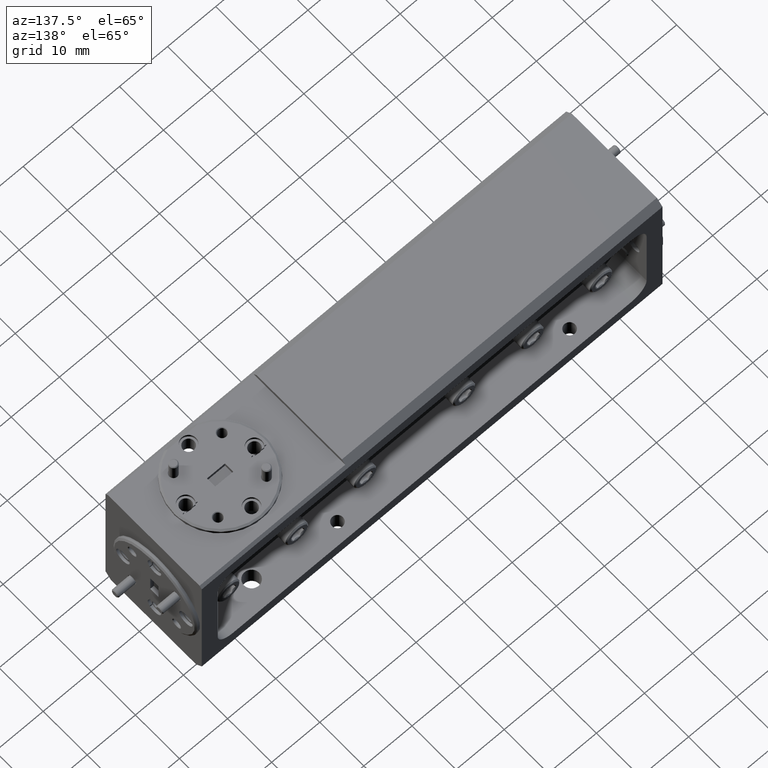
[diagram: clean part render]
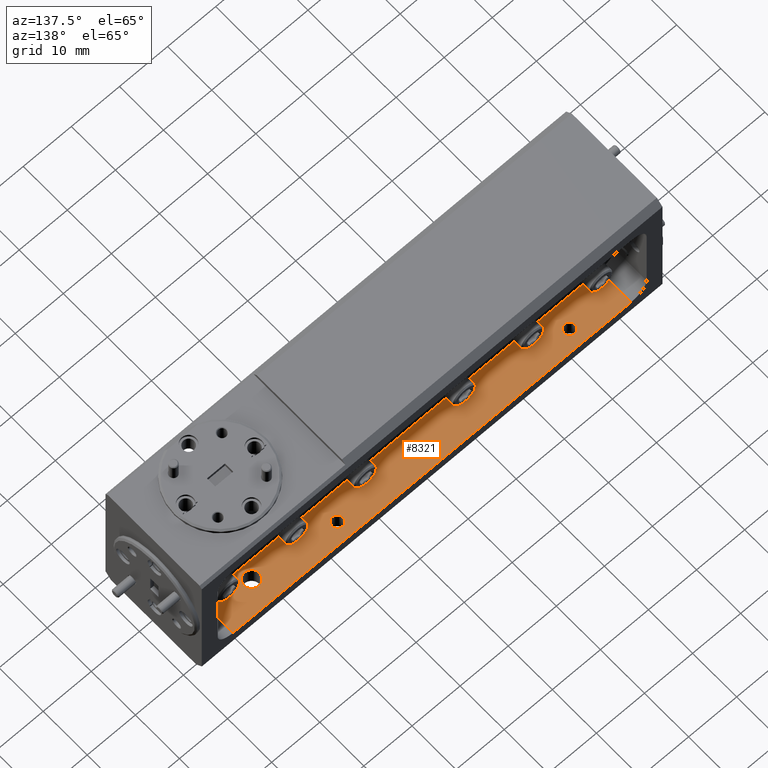
[diagram: same view with one face highlighted and labeled with its STEP entity id]
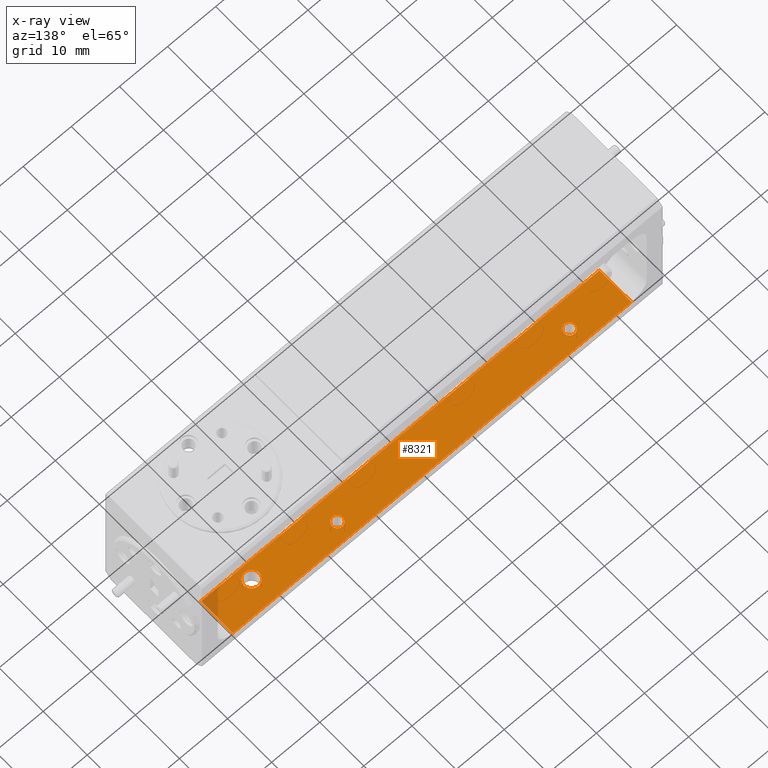
[diagram: x-ray of the same camera — body ghosted, the highlighted face saturated]
A machine part, auxiliary view. The second image highlights one B-rep face of the part: STEP entity #8321.
The next image is the same camera in x-ray: the body ghosted, the highlighted face saturated — about 1% of this face is hidden behind the body in this view.
In plain terms, the highlighted planar face has unit normal (0, -0, 1).
Its self-contained STEP definition (entity closure, byte-faithful):
#390 = DIRECTION ( 'NONE',  ( -0.0000000000000000000, -0.0000000000000000000, -1.000000000000000000 ) ) ;
#590 = CIRCLE ( 'NONE', #5089, 0.06249999999999995143 ) ;
#641 = VERTEX_POINT ( 'NONE', #7810 ) ;
#731 = CARTESIAN_POINT ( 'NONE',  ( 1.755000000000000782, 0.5750000000000000666, -0.4400000000000001688 ) ) ;
#736 = DIRECTION ( 'NONE',  ( -1.000000000000000000, 0.0000000000000000000, 0.0000000000000000000 ) ) ;
#1145 = CIRCLE ( 'NONE', #15975, 0.04449999999999989381 ) ;
#1377 = CARTESIAN_POINT ( 'NONE',  ( -1.190499999999999892, 0.7400000000000002132, -0.4399999999999994471 ) ) ;
#1474 = AXIS2_PLACEMENT_3D ( 'NONE', #11709, #17856, #13640 ) ;
#1615 = CARTESIAN_POINT ( 'NONE',  ( -1.279499999999999860, 0.7400000000000002132, -0.4399999999999994471 ) ) ;
#1912 = VERTEX_POINT ( 'NONE', #11928 ) ;
#1987 = EDGE_CURVE ( 'NONE', #7344, #19432, #6622, .T. ) ;
#2070 = EDGE_CURVE ( 'NONE', #641, #6845, #2084, .T. ) ;
#2084 = LINE ( 'NONE', #14413, #7120 ) ;
#2244 = LINE ( 'NONE', #8405, #13789 ) ;
#2277 = EDGE_CURVE ( 'NONE', #17383, #2281, #2611, .T. ) ;
#2281 = VERTEX_POINT ( 'NONE', #1377 ) ;
#2486 = LINE ( 'NONE', #16319, #6932 ) ;
#2597 = VECTOR ( 'NONE', #19256, 39.37007874015748143 ) ;
#2611 = CIRCLE ( 'NONE', #18087, 0.04450000000000003259 ) ;
#3307 = CARTESIAN_POINT ( 'NONE',  ( 1.367499999999999716, 0.6717499999999997362, -0.4399999999999997247 ) ) ;
#3413 = CIRCLE ( 'NONE', #8579, 0.04449999999999989381 ) ;
#3555 = CIRCLE ( 'NONE', #12754, 0.06249999999999995143 ) ;
#3581 = DIRECTION ( 'NONE',  ( -0.0000000000000000000, -0.0000000000000000000, -1.000000000000000000 ) ) ;
#4180 = ORIENTED_EDGE ( 'NONE', *, *, #11989, .T. ) ;
#4602 = CARTESIAN_POINT ( 'NONE',  ( 1.242499999999999938, 0.6717499999999997362, -0.4399999999999997247 ) ) ;
#4697 = DIRECTION ( 'NONE',  ( -0.0000000000000000000, -0.0000000000000000000, -1.000000000000000000 ) ) ;
#4960 = ORIENTED_EDGE ( 'NONE', *, *, #2277, .T. ) ;
#5089 = AXIS2_PLACEMENT_3D ( 'NONE', #15810, #3581, #15904 ) ;
#5844 = DIRECTION ( 'NONE',  ( -1.000000000000000000, 0.0000000000000000000, 0.0000000000000000000 ) ) ;
#6622 = LINE ( 'NONE', #13098, #2597 ) ;
#6845 = VERTEX_POINT ( 'NONE', #14895 ) ;
#6932 = VECTOR ( 'NONE', #12182, 39.37007874015748143 ) ;
#7120 = VECTOR ( 'NONE', #7886, 39.37007874015748143 ) ;
#7344 = VERTEX_POINT ( 'NONE', #18466 ) ;
#7810 = CARTESIAN_POINT ( 'NONE',  ( -1.630000000000000338, 0.8600000000000000977, -0.4400000000000001688 ) ) ;
#7886 = DIRECTION ( 'NONE',  ( -0.0000000000000000000, -1.000000000000000000, -0.0000000000000000000 ) ) ;
#8061 = ORIENTED_EDGE ( 'NONE', *, *, #10378, .T. ) ;
#8162 = CARTESIAN_POINT ( 'NONE',  ( 0.6650000000000000355, 0.7400000000000002132, -0.4399999999999996692 ) ) ;
#8175 = EDGE_LOOP ( 'NONE', ( #9934, #10266, #16362, #10199 ) ) ;
#8321 = ADVANCED_FACE ( 'NONE', ( #17296, #19014, #17586, #14279 ), #11343, .T. ) ;
#8405 = CARTESIAN_POINT ( 'NONE',  ( 1.755000000000000782, 0.8600000000000000977, -0.4400000000000001688 ) ) ;
#8579 = AXIS2_PLACEMENT_3D ( 'NONE', #8162, #390, #13104 ) ;
#8894 = CIRCLE ( 'NONE', #1474, 0.04450000000000003259 ) ;
#9727 = DIRECTION ( 'NONE',  ( 0.0000000000000000000, -0.0000000000000000000, 1.000000000000000000 ) ) ;
#9885 = CARTESIAN_POINT ( 'NONE',  ( 0.7094999999999999085, 0.7400000000000002132, -0.4399999999999996692 ) ) ;
#9934 = ORIENTED_EDGE ( 'NONE', *, *, #13484, .T. ) ;
#10124 = EDGE_CURVE ( 'NONE', #2281, #17383, #8894, .T. ) ;
#10199 = ORIENTED_EDGE ( 'NONE', *, *, #2070, .T. ) ;
#10266 = ORIENTED_EDGE ( 'NONE', *, *, #1987, .T. ) ;
#10304 = EDGE_LOOP ( 'NONE', ( #4960, #14911 ) ) ;
#10378 = EDGE_CURVE ( 'NONE', #1912, #17430, #3413, .T. ) ;
#10875 = EDGE_CURVE ( 'NONE', #641, #19432, #2244, .T. ) ;
#11343 = PLANE ( 'NONE',  #15824 ) ;
#11709 = CARTESIAN_POINT ( 'NONE',  ( -1.234999999999999876, 0.7400000000000002132, -0.4399999999999994471 ) ) ;
#11928 = CARTESIAN_POINT ( 'NONE',  ( 0.6205000000000001625, 0.7400000000000002132, -0.4399999999999996692 ) ) ;
#11989 = EDGE_CURVE ( 'NONE', #13217, #13647, #590, .T. ) ;
#12110 = EDGE_LOOP ( 'NONE', ( #8061, #19377 ) ) ;
#12182 = DIRECTION ( 'NONE',  ( 1.000000000000000000, -0.0000000000000000000, -0.0000000000000000000 ) ) ;
#12754 = AXIS2_PLACEMENT_3D ( 'NONE', #13533, #19686, #5844 ) ;
#13098 = CARTESIAN_POINT ( 'NONE',  ( 1.630000000000001004, 0.8600000000000000977, -0.4400000000000001688 ) ) ;
#13104 = DIRECTION ( 'NONE',  ( -1.000000000000000000, 0.0000000000000000000, 0.0000000000000000000 ) ) ;
#13179 = EDGE_CURVE ( 'NONE', #13647, #13217, #3555, .T. ) ;
#13217 = VERTEX_POINT ( 'NONE', #3307 ) ;
#13484 = EDGE_CURVE ( 'NONE', #6845, #7344, #2486, .T. ) ;
#13533 = CARTESIAN_POINT ( 'NONE',  ( 1.304999999999999938, 0.6717499999999997362, -0.4399999999999997247 ) ) ;
#13640 = DIRECTION ( 'NONE',  ( -1.000000000000000000, 0.0000000000000000000, 0.0000000000000000000 ) ) ;
#13647 = VERTEX_POINT ( 'NONE', #4602 ) ;
#13789 = VECTOR ( 'NONE', #19211, 39.37007874015748143 ) ;
#13804 = CARTESIAN_POINT ( 'NONE',  ( -1.234999999999999876, 0.7400000000000002132, -0.4399999999999994471 ) ) ;
#14279 = FACE_OUTER_BOUND ( 'NONE', #8175, .T. ) ;
#14413 = CARTESIAN_POINT ( 'NONE',  ( -1.630000000000000560, 0.5750000000000000666, -0.4400000000000001688 ) ) ;
#14895 = CARTESIAN_POINT ( 'NONE',  ( -1.630000000000000338, 0.5750000000000000666, -0.4400000000000001688 ) ) ;
#14911 = ORIENTED_EDGE ( 'NONE', *, *, #10124, .T. ) ;
#15105 = EDGE_LOOP ( 'NONE', ( #16949, #4180 ) ) ;
#15607 = DIRECTION ( 'NONE',  ( -1.000000000000000000, 0.0000000000000000000, 0.0000000000000000000 ) ) ;
#15810 = CARTESIAN_POINT ( 'NONE',  ( 1.304999999999999938, 0.6717499999999997362, -0.4399999999999997247 ) ) ;
#15824 = AXIS2_PLACEMENT_3D ( 'NONE', #731, #9727, #17498 ) ;
#15904 = DIRECTION ( 'NONE',  ( -1.000000000000000000, 0.0000000000000000000, 0.0000000000000000000 ) ) ;
#15975 = AXIS2_PLACEMENT_3D ( 'NONE', #17694, #19124, #736 ) ;
#16319 = CARTESIAN_POINT ( 'NONE',  ( 1.755000000000000782, 0.5750000000000000666, -0.4400000000000001688 ) ) ;
#16362 = ORIENTED_EDGE ( 'NONE', *, *, #10875, .F. ) ;
#16514 = EDGE_CURVE ( 'NONE', #17430, #1912, #1145, .T. ) ;
#16949 = ORIENTED_EDGE ( 'NONE', *, *, #13179, .T. ) ;
#17296 = FACE_BOUND ( 'NONE', #12110, .T. ) ;
#17383 = VERTEX_POINT ( 'NONE', #1615 ) ;
#17430 = VERTEX_POINT ( 'NONE', #9885 ) ;
#17498 = DIRECTION ( 'NONE',  ( 1.000000000000000000, 0.0000000000000000000, -0.0000000000000000000 ) ) ;
#17586 = FACE_BOUND ( 'NONE', #15105, .T. ) ;
#17694 = CARTESIAN_POINT ( 'NONE',  ( 0.6650000000000000355, 0.7400000000000002132, -0.4399999999999996692 ) ) ;
#17856 = DIRECTION ( 'NONE',  ( -0.0000000000000000000, -0.0000000000000000000, -1.000000000000000000 ) ) ;
#18087 = AXIS2_PLACEMENT_3D ( 'NONE', #13804, #4697, #15607 ) ;
#18466 = CARTESIAN_POINT ( 'NONE',  ( 1.630000000000001004, 0.5750000000000000666, -0.4400000000000001688 ) ) ;
#19014 = FACE_BOUND ( 'NONE', #10304, .T. ) ;
#19124 = DIRECTION ( 'NONE',  ( -0.0000000000000000000, -0.0000000000000000000, -1.000000000000000000 ) ) ;
#19211 = DIRECTION ( 'NONE',  ( 1.000000000000000000, -0.0000000000000000000, -0.0000000000000000000 ) ) ;
#19256 = DIRECTION ( 'NONE',  ( 0.0000000000000000000, 1.000000000000000000, 0.0000000000000000000 ) ) ;
#19377 = ORIENTED_EDGE ( 'NONE', *, *, #16514, .T. ) ;
#19432 = VERTEX_POINT ( 'NONE', #19961 ) ;
#19686 = DIRECTION ( 'NONE',  ( -0.0000000000000000000, -0.0000000000000000000, -1.000000000000000000 ) ) ;
#19961 = CARTESIAN_POINT ( 'NONE',  ( 1.630000000000001004, 0.8600000000000000977, -0.4400000000000001688 ) ) ;